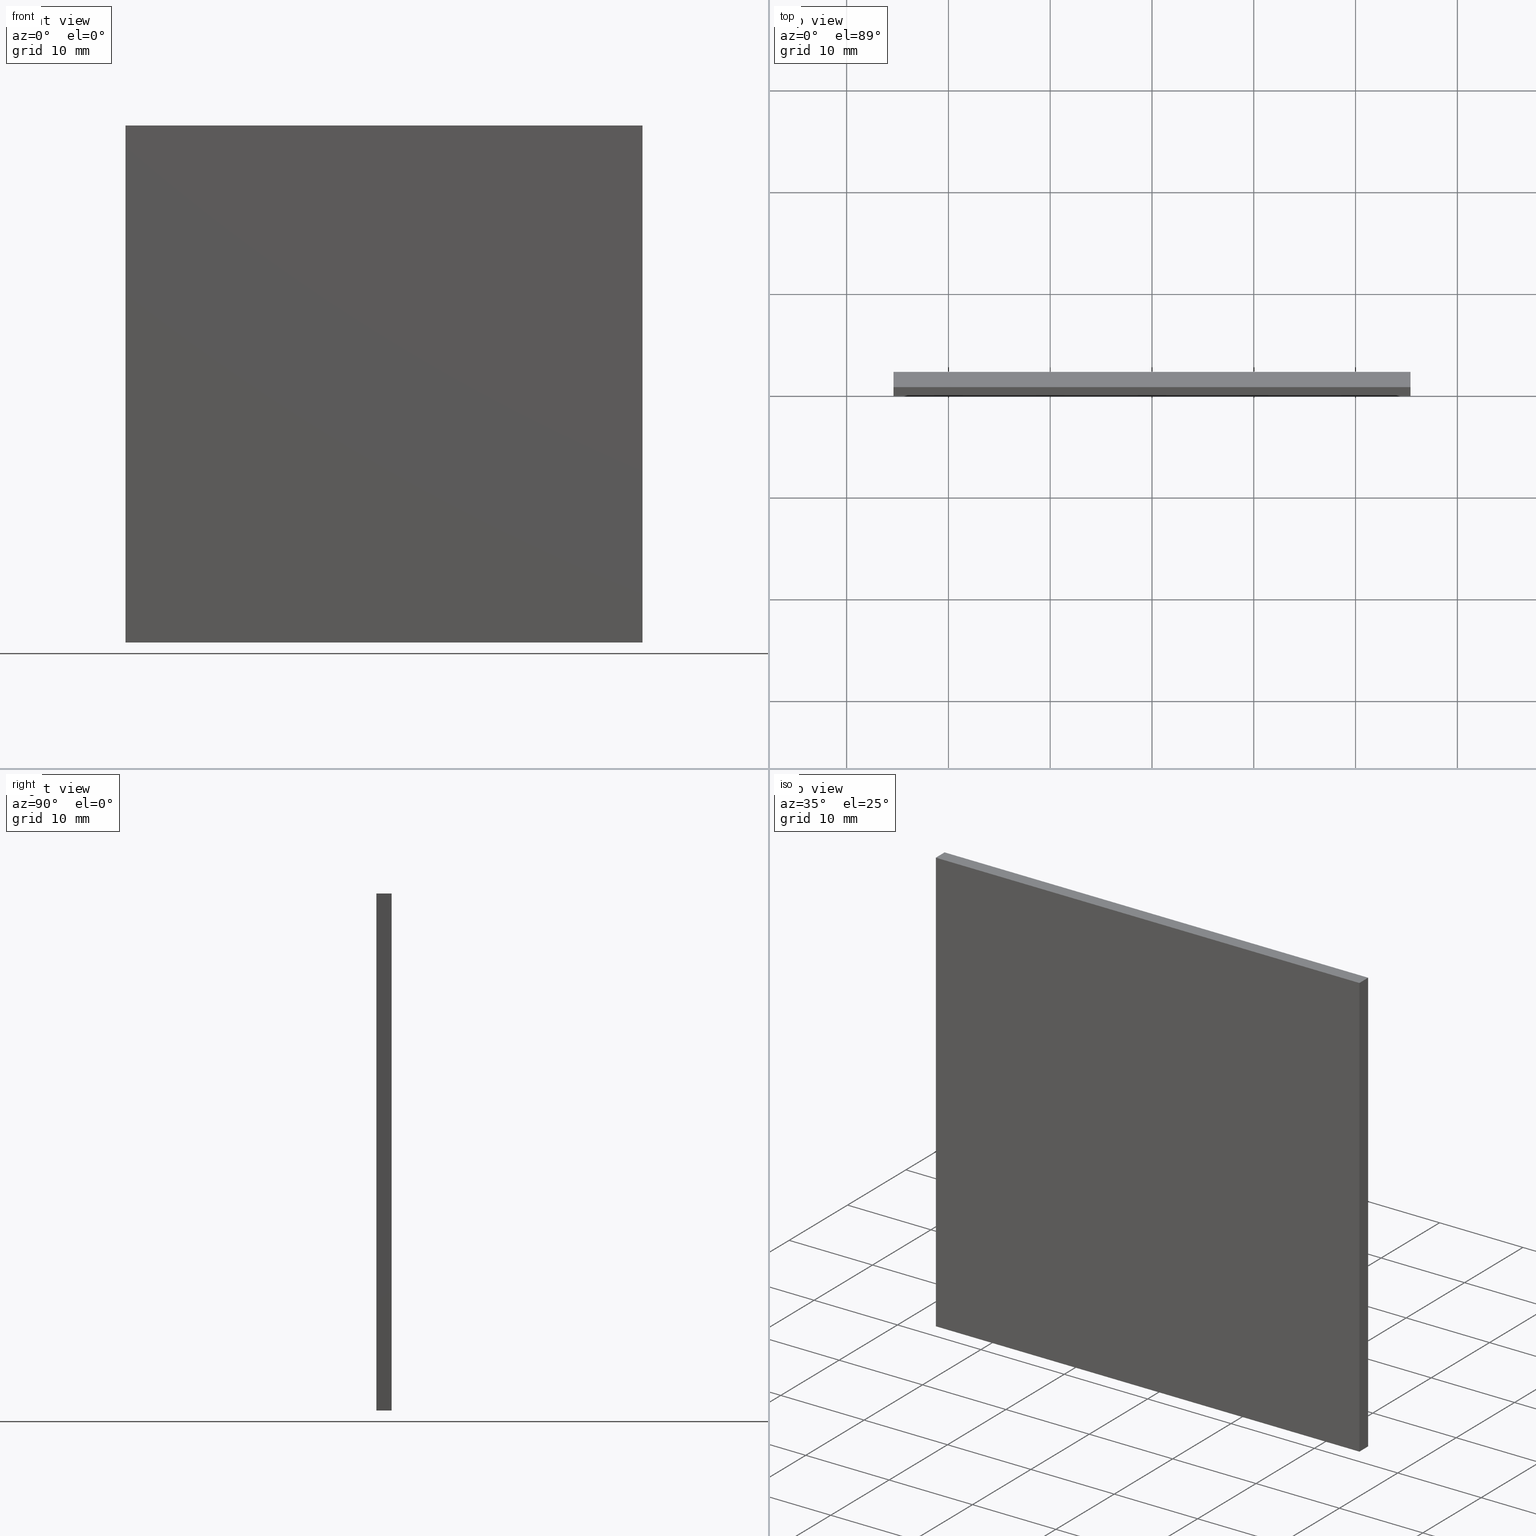
[diagram: canonical four-view strip — front | top / right | iso, engineering-drawing reading convention]
A machine part, canonical four-view strip (front | top / right | iso — engineering-drawing reading convention). The complete STEP part file that produces these views, byte-faithful:
ISO-10303-21;
HEADER;
FILE_DESCRIPTION (( 'STEP AP214' ),
    '1' );
FILE_NAME ('350505.STEP',
    '2019-08-14T06:09:32',
    ( 'user' ),
    ( '΢���й�' ),
    'SwSTEP 2.0',
    'SolidWorks 2016',
    '' );
FILE_SCHEMA (( 'AUTOMOTIVE_DESIGN' ));
ENDSEC;

DATA;
#1 = FACE_OUTER_BOUND ( 'NONE', #18, .T. ) ;
#2 = VECTOR ( 'NONE', #26, 1000.000000000000000 ) ;
#3 = VERTEX_POINT ( 'NONE', #104 ) ;
#4 = STYLED_ITEM ( 'NONE', ( #117 ), #57 ) ;
#5 = CARTESIAN_POINT ( 'NONE',  ( -25.40000000000000200, 0.0000000000000000000, 25.39999999999999900 ) ) ;
#6 = DIRECTION ( 'NONE',  ( 0.0000000000000000000, 0.0000000000000000000, 1.000000000000000000 ) ) ;
#7 = DIRECTION ( 'NONE',  ( 1.000000000000000000, 0.0000000000000000000, 0.0000000000000000000 ) ) ;
#8 = CARTESIAN_POINT ( 'NONE',  ( -25.40000000000000200, 1.500000000000000000, 25.39999999999999900 ) ) ;
#9 = ORIENTED_EDGE ( 'NONE', *, *, #189, .F. ) ;
#10 = STYLED_ITEM ( 'NONE', ( #97 ), #148 ) ;
#11 = DIRECTION ( 'NONE',  ( 0.0000000000000000000, -0.0000000000000000000, -1.000000000000000000 ) ) ;
#12 =( LENGTH_UNIT ( ) NAMED_UNIT ( * ) SI_UNIT ( .MILLI., .METRE. ) );
#13 = CARTESIAN_POINT ( 'NONE',  ( 25.39999999999999500, 1.500000000000000000, 25.39999999999999900 ) ) ;
#14 = FACE_OUTER_BOUND ( 'NONE', #115, .T. ) ;
#15 = SURFACE_STYLE_USAGE ( .BOTH. , #123 ) ;
#16 = VERTEX_POINT ( 'NONE', #105 ) ;
#17 = PRESENTATION_LAYER_ASSIGNMENT (  '', '', ( #4 ) ) ;
#18 = EDGE_LOOP ( 'NONE', ( #65, #136, #185, #23 ) ) ;
#19 = EDGE_CURVE ( 'NONE', #174, #90, #46, .T. ) ;
#20 = ORIENTED_EDGE ( 'NONE', *, *, #143, .F. ) ;
#21 = FACE_OUTER_BOUND ( 'NONE', #163, .T. ) ;
#22 = PRESENTATION_LAYER_ASSIGNMENT (  '', '', ( #10 ) ) ;
#23 = ORIENTED_EDGE ( 'NONE', *, *, #173, .T. ) ;
#24 = DIRECTION ( 'NONE',  ( -1.000000000000000000, -0.0000000000000000000, -0.0000000000000000000 ) ) ;
#25 = CARTESIAN_POINT ( 'NONE',  ( 25.39999999999999500, 1.500000000000000000, -25.39999999999999900 ) ) ;
#26 = DIRECTION ( 'NONE',  ( -0.0000000000000000000, -1.000000000000000000, -0.0000000000000000000 ) ) ;
#27 = DIRECTION ( 'NONE',  ( 0.0000000000000000000, -1.000000000000000000, 0.0000000000000000000 ) ) ;
#28 = FACE_OUTER_BOUND ( 'NONE', #161, .T. ) ;
#29 = SURFACE_STYLE_FILL_AREA ( #62 ) ;
#30 = DIRECTION ( 'NONE',  ( -0.0000000000000000000, -0.0000000000000000000, 1.000000000000000000 ) ) ;
#31 = MECHANICAL_DESIGN_GEOMETRIC_PRESENTATION_REPRESENTATION (  '', ( #4 ), #42 ) ;
#32 = PLANE ( 'NONE',  #68 ) ;
#33 = EDGE_CURVE ( 'NONE', #174, #147, #202, .T. ) ;
#34 = VECTOR ( 'NONE', #159, 1000.000000000000000 ) ;
#35 = MECHANICAL_DESIGN_GEOMETRIC_PRESENTATION_REPRESENTATION (  '', ( #10 ), #47 ) ;
#36 = SURFACE_STYLE_FILL_AREA ( #140 ) ;
#37 = EDGE_LOOP ( 'NONE', ( #176, #190, #9, #53 ) ) ;
#38 = PRODUCT_DEFINITION_CONTEXT ( 'detailed design', #194, 'design' ) ;
#39 = VECTOR ( 'NONE', #158, 1000.000000000000000 ) ;
#40 = ORIENTED_EDGE ( 'NONE', *, *, #120, .F. ) ;
#41 =( NAMED_UNIT ( * ) SI_UNIT ( $, .STERADIAN. ) SOLID_ANGLE_UNIT ( ) );
#42 =( GEOMETRIC_REPRESENTATION_CONTEXT ( 3 ) GLOBAL_UNCERTAINTY_ASSIGNED_CONTEXT ( ( #201 ) ) GLOBAL_UNIT_ASSIGNED_CONTEXT ( ( #91, #58, #121 ) ) REPRESENTATION_CONTEXT ( 'NONE', 'WORKASPACE' ) );
#43 = CARTESIAN_POINT ( 'NONE',  ( -25.40000000000000200, 1.500000000000000000, 25.39999999999999900 ) ) ;
#44 = CARTESIAN_POINT ( 'NONE',  ( -25.40000000000000200, 1.500000000000000000, -25.39999999999999900 ) ) ;
#45 = EDGE_CURVE ( 'NONE', #3, #16, #78, .T. ) ;
#46 = LINE ( 'NONE', #59, #122 ) ;
#47 =( GEOMETRIC_REPRESENTATION_CONTEXT ( 3 ) GLOBAL_UNCERTAINTY_ASSIGNED_CONTEXT ( ( #130 ) ) GLOBAL_UNIT_ASSIGNED_CONTEXT ( ( #12, #172, #118 ) ) REPRESENTATION_CONTEXT ( 'NONE', 'WORKASPACE' ) );
#48 = PRODUCT_CONTEXT ( 'NONE', #86, 'mechanical' ) ;
#49 = CARTESIAN_POINT ( 'NONE',  ( 25.39999999999999500, 1.500000000000000000, -25.39999999999999900 ) ) ;
#50 = ORIENTED_EDGE ( 'NONE', *, *, #85, .F. ) ;
#51 = FACE_OUTER_BOUND ( 'NONE', #125, .T. ) ;
#52 = EDGE_CURVE ( 'NONE', #147, #131, #198, .T. ) ;
#53 = ORIENTED_EDGE ( 'NONE', *, *, #45, .T. ) ;
#54 = DIRECTION ( 'NONE',  ( 1.000000000000000000, -0.0000000000000000000, 0.0000000000000000000 ) ) ;
#55 = ORIENTED_EDGE ( 'NONE', *, *, #189, .T. ) ;
#56 = DIRECTION ( 'NONE',  ( 0.0000000000000000000, -1.000000000000000000, 0.0000000000000000000 ) ) ;
#57 = MANIFOLD_SOLID_BREP ( '͹̨-����1', #191 ) ;
#58 =( NAMED_UNIT ( * ) PLANE_ANGLE_UNIT ( ) SI_UNIT ( $, .RADIAN. ) );
#59 = CARTESIAN_POINT ( 'NONE',  ( -25.40000000000000200, 1.500000000000000000, 25.39999999999999900 ) ) ;
#60 = VERTEX_POINT ( 'NONE', #199 ) ;
#61 = DIRECTION ( 'NONE',  ( -0.0000000000000000000, -1.000000000000000000, -0.0000000000000000000 ) ) ;
#62 = FILL_AREA_STYLE ('',( #74 ) ) ;
#63 = ORIENTED_EDGE ( 'NONE', *, *, #52, .F. ) ;
#64 = LINE ( 'NONE', #155, #72 ) ;
#65 = ORIENTED_EDGE ( 'NONE', *, *, #85, .T. ) ;
#66 = ADVANCED_FACE ( 'NONE', ( #1 ), #32, .F. ) ;
#67 = ORIENTED_EDGE ( 'NONE', *, *, #142, .F. ) ;
#68 = AXIS2_PLACEMENT_3D ( 'NONE', #44, #77, #187 ) ;
#69 = CARTESIAN_POINT ( 'NONE',  ( -25.40000000000000200, 1.500000000000000000, 25.39999999999999900 ) ) ;
#70 = DIRECTION ( 'NONE',  ( 0.0000000000000000000, 0.0000000000000000000, -1.000000000000000000 ) ) ;
#71 = UNCERTAINTY_MEASURE_WITH_UNIT (LENGTH_MEASURE( 1.000000000000000100E-005 ), #114, 'distance_accuracy_value', 'NONE');
#72 = VECTOR ( 'NONE', #61, 1000.000000000000000 ) ;
#73 = AXIS2_PLACEMENT_3D ( 'NONE', #183, #6, #119 ) ;
#74 = FILL_AREA_STYLE_COLOUR ( '', #152 ) ;
#75 = VECTOR ( 'NONE', #70, 1000.000000000000000 ) ;
#76 = ORIENTED_EDGE ( 'NONE', *, *, #142, .T. ) ;
#77 = DIRECTION ( 'NONE',  ( 0.0000000000000000000, 0.0000000000000000000, 1.000000000000000000 ) ) ;
#78 = LINE ( 'NONE', #179, #160 ) ;
#79 = ORIENTED_EDGE ( 'NONE', *, *, #52, .T. ) ;
#80 = VECTOR ( 'NONE', #30, 1000.000000000000000 ) ;
#81 = ORIENTED_EDGE ( 'NONE', *, *, #120, .T. ) ;
#82 = PRODUCT_DEFINITION ( 'δ֪', '', #100, #38 ) ;
#83 = LINE ( 'NONE', #164, #34 ) ;
#84 = PLANE ( 'NONE',  #116 ) ;
#85 = EDGE_CURVE ( 'NONE', #102, #16, #178, .T. ) ;
#86 = APPLICATION_CONTEXT ( 'automotive_design' ) ;
#87 = DIRECTION ( 'NONE',  ( 0.0000000000000000000, 0.0000000000000000000, -1.000000000000000000 ) ) ;
#88 = ORIENTED_EDGE ( 'NONE', *, *, #33, .T. ) ;
#89 = CARTESIAN_POINT ( 'NONE',  ( 0.0000000000000000000, 1.500000000000000000, 0.0000000000000000000 ) ) ;
#90 = VERTEX_POINT ( 'NONE', #170 ) ;
#91 =( LENGTH_UNIT ( ) NAMED_UNIT ( * ) SI_UNIT ( .MILLI., .METRE. ) );
#92 = LINE ( 'NONE', #196, #132 ) ;
#93 = DIRECTION ( 'NONE',  ( -1.000000000000000000, -0.0000000000000000000, -0.0000000000000000000 ) ) ;
#94 = AXIS2_PLACEMENT_3D ( 'NONE', #43, #54, #150 ) ;
#95 = DIRECTION ( 'NONE',  ( -0.0000000000000000000, -1.000000000000000000, -0.0000000000000000000 ) ) ;
#96 =( NAMED_UNIT ( * ) PLANE_ANGLE_UNIT ( ) SI_UNIT ( $, .RADIAN. ) );
#97 = PRESENTATION_STYLE_ASSIGNMENT (( #154 ) ) ;
#98 = ORIENTED_EDGE ( 'NONE', *, *, #101, .F. ) ;
#99 = FACE_OUTER_BOUND ( 'NONE', #37, .T. ) ;
#100 = PRODUCT_DEFINITION_FORMATION_WITH_SPECIFIED_SOURCE ( '�κ�', '', #109, .NOT_KNOWN. ) ;
#101 = EDGE_CURVE ( 'NONE', #16, #90, #83, .T. ) ;
#102 = VERTEX_POINT ( 'NONE', #124 ) ;
#103 = VECTOR ( 'NONE', #93, 1000.000000000000000 ) ;
#104 = CARTESIAN_POINT ( 'NONE',  ( -25.40000000000000200, 1.500000000000000000, -25.39999999999999900 ) ) ;
#105 = CARTESIAN_POINT ( 'NONE',  ( -25.40000000000000200, 0.0000000000000000000, -25.39999999999999900 ) ) ;
#106 = PLANE ( 'NONE',  #134 ) ;
#107 = ORIENTED_EDGE ( 'NONE', *, *, #19, .T. ) ;
#108 = CARTESIAN_POINT ( 'NONE',  ( 25.39999999999999500, 1.500000000000000000, 25.39999999999999900 ) ) ;
#109 = PRODUCT ( '350505', '350505', '', ( #48 ) ) ;
#110 = PLANE ( 'NONE',  #156 ) ;
#111 = PRODUCT_RELATED_PRODUCT_CATEGORY ( 'part', '', ( #109 ) ) ;
#112 = CARTESIAN_POINT ( 'NONE',  ( -25.40000000000000200, 1.500000000000000000, 25.39999999999999900 ) ) ;
#113 = DIRECTION ( 'NONE',  ( -0.0000000000000000000, -1.000000000000000000, -0.0000000000000000000 ) ) ;
#114 =( LENGTH_UNIT ( ) NAMED_UNIT ( * ) SI_UNIT ( .MILLI., .METRE. ) );
#115 = EDGE_LOOP ( 'NONE', ( #67, #40, #98, #50 ) ) ;
#116 = AXIS2_PLACEMENT_3D ( 'NONE', #69, #180, #171 ) ;
#117 = PRESENTATION_STYLE_ASSIGNMENT (( #15 ) ) ;
#118 =( NAMED_UNIT ( * ) SI_UNIT ( $, .STERADIAN. ) SOLID_ANGLE_UNIT ( ) );
#119 = DIRECTION ( 'NONE',  ( 1.000000000000000000, 0.0000000000000000000, 0.0000000000000000000 ) ) ;
#120 = EDGE_CURVE ( 'NONE', #90, #60, #126, .T. ) ;
#121 =( NAMED_UNIT ( * ) SI_UNIT ( $, .STERADIAN. ) SOLID_ANGLE_UNIT ( ) );
#122 = VECTOR ( 'NONE', #95, 1000.000000000000000 ) ;
#123 = SURFACE_SIDE_STYLE ('',( #36 ) ) ;
#124 = CARTESIAN_POINT ( 'NONE',  ( 25.39999999999999500, 0.0000000000000000000, -25.39999999999999900 ) ) ;
#125 = EDGE_LOOP ( 'NONE', ( #76, #144, #63, #166 ) ) ;
#126 = LINE ( 'NONE', #5, #149 ) ;
#127 = LINE ( 'NONE', #25, #2 ) ;
#128 = EDGE_CURVE ( 'NONE', #131, #3, #168, .T. ) ;
#129 = ADVANCED_FACE ( 'NONE', ( #99 ), #135, .F. ) ;
#130 = UNCERTAINTY_MEASURE_WITH_UNIT (LENGTH_MEASURE( 1.000000000000000100E-005 ), #12, 'distance_accuracy_value', 'NONE');
#131 = VERTEX_POINT ( 'NONE', #49 ) ;
#132 = VECTOR ( 'NONE', #87, 1000.000000000000000 ) ;
#133 = CARTESIAN_POINT ( 'NONE',  ( -25.40000000000000200, 1.500000000000000000, 25.39999999999999900 ) ) ;
#134 = AXIS2_PLACEMENT_3D ( 'NONE', #151, #56, #137 ) ;
#135 = PLANE ( 'NONE',  #94 ) ;
#136 = ORIENTED_EDGE ( 'NONE', *, *, #45, .F. ) ;
#137 = DIRECTION ( 'NONE',  ( 0.0000000000000000000, -0.0000000000000000000, -1.000000000000000000 ) ) ;
#138 = CARTESIAN_POINT ( 'NONE',  ( 25.39999999999999500, 1.500000000000000000, 25.39999999999999900 ) ) ;
#139 = APPLICATION_PROTOCOL_DEFINITION ( 'draft international standard', 'automotive_design', 1998, #86 ) ;
#140 = FILL_AREA_STYLE ('',( #157 ) ) ;
#141 = ADVANCED_FACE ( 'NONE', ( #21 ), #84, .F. ) ;
#142 = EDGE_CURVE ( 'NONE', #60, #102, #92, .T. ) ;
#143 = EDGE_CURVE ( 'NONE', #147, #60, #64, .T. ) ;
#144 = ORIENTED_EDGE ( 'NONE', *, *, #173, .F. ) ;
#145 = VECTOR ( 'NONE', #24, 1000.000000000000000 ) ;
#146 = LINE ( 'NONE', #112, #80 ) ;
#147 = VERTEX_POINT ( 'NONE', #108 ) ;
#148 = ADVANCED_BREP_SHAPE_REPRESENTATION ( '350505', ( #57, #73 ), #182 ) ;
#149 = VECTOR ( 'NONE', #7, 1000.000000000000000 ) ;
#150 = DIRECTION ( 'NONE',  ( 0.0000000000000000000, 0.0000000000000000000, -1.000000000000000000 ) ) ;
#151 = CARTESIAN_POINT ( 'NONE',  ( 0.0000000000000000000, 0.0000000000000000000, 0.0000000000000000000 ) ) ;
#152 = COLOUR_RGB ( '',1.000000000000000000, 1.000000000000000000, 1.000000000000000000 ) ;
#153 = PLANE ( 'NONE',  #193 ) ;
#154 = SURFACE_STYLE_USAGE ( .BOTH. , #169 ) ;
#155 = CARTESIAN_POINT ( 'NONE',  ( 25.39999999999999500, 1.500000000000000000, 25.39999999999999900 ) ) ;
#156 = AXIS2_PLACEMENT_3D ( 'NONE', #89, #27, #11 ) ;
#157 = FILL_AREA_STYLE_COLOUR ( '', #162 ) ;
#158 = DIRECTION ( 'NONE',  ( 1.000000000000000000, 0.0000000000000000000, 0.0000000000000000000 ) ) ;
#159 = DIRECTION ( 'NONE',  ( -0.0000000000000000000, -0.0000000000000000000, 1.000000000000000000 ) ) ;
#160 = VECTOR ( 'NONE', #113, 1000.000000000000000 ) ;
#161 = EDGE_LOOP ( 'NONE', ( #79, #181, #55, #88 ) ) ;
#162 = COLOUR_RGB ( '',1.000000000000000000, 1.000000000000000000, 1.000000000000000000 ) ;
#163 = EDGE_LOOP ( 'NONE', ( #81, #20, #175, #107 ) ) ;
#164 = CARTESIAN_POINT ( 'NONE',  ( -25.40000000000000200, 0.0000000000000000000, 25.39999999999999900 ) ) ;
#165 = CARTESIAN_POINT ( 'NONE',  ( -25.40000000000000200, 1.500000000000000000, -25.39999999999999900 ) ) ;
#166 = ORIENTED_EDGE ( 'NONE', *, *, #143, .T. ) ;
#167 = DIRECTION ( 'NONE',  ( 0.0000000000000000000, 0.0000000000000000000, 1.000000000000000000 ) ) ;
#168 = LINE ( 'NONE', #165, #145 ) ;
#169 = SURFACE_SIDE_STYLE ('',( #29 ) ) ;
#170 = CARTESIAN_POINT ( 'NONE',  ( -25.40000000000000200, 0.0000000000000000000, 25.39999999999999900 ) ) ;
#171 = DIRECTION ( 'NONE',  ( -1.000000000000000000, 0.0000000000000000000, -0.0000000000000000000 ) ) ;
#172 =( NAMED_UNIT ( * ) PLANE_ANGLE_UNIT ( ) SI_UNIT ( $, .RADIAN. ) );
#173 = EDGE_CURVE ( 'NONE', #131, #102, #127, .T. ) ;
#174 = VERTEX_POINT ( 'NONE', #8 ) ;
#175 = ORIENTED_EDGE ( 'NONE', *, *, #33, .F. ) ;
#176 = ORIENTED_EDGE ( 'NONE', *, *, #101, .T. ) ;
#177 = ADVANCED_FACE ( 'NONE', ( #14 ), #106, .T. ) ;
#178 = LINE ( 'NONE', #195, #103 ) ;
#179 = CARTESIAN_POINT ( 'NONE',  ( -25.40000000000000200, 1.500000000000000000, -25.39999999999999900 ) ) ;
#180 = DIRECTION ( 'NONE',  ( 0.0000000000000000000, 0.0000000000000000000, -1.000000000000000000 ) ) ;
#181 = ORIENTED_EDGE ( 'NONE', *, *, #128, .T. ) ;
#182 =( GEOMETRIC_REPRESENTATION_CONTEXT ( 3 ) GLOBAL_UNCERTAINTY_ASSIGNED_CONTEXT ( ( #71 ) ) GLOBAL_UNIT_ASSIGNED_CONTEXT ( ( #114, #96, #41 ) ) REPRESENTATION_CONTEXT ( 'NONE', 'WORKASPACE' ) );
#183 = CARTESIAN_POINT ( 'NONE',  ( 0.0000000000000000000, 0.0000000000000000000, 0.0000000000000000000 ) ) ;
#184 = ADVANCED_FACE ( 'NONE', ( #28 ), #110, .F. ) ;
#185 = ORIENTED_EDGE ( 'NONE', *, *, #128, .F. ) ;
#186 = SHAPE_DEFINITION_REPRESENTATION ( #192, #148 ) ;
#187 = DIRECTION ( 'NONE',  ( 1.000000000000000000, 0.0000000000000000000, -0.0000000000000000000 ) ) ;
#188 = ADVANCED_FACE ( 'NONE', ( #51 ), #153, .F. ) ;
#189 = EDGE_CURVE ( 'NONE', #3, #174, #146, .T. ) ;
#190 = ORIENTED_EDGE ( 'NONE', *, *, #19, .F. ) ;
#191 = CLOSED_SHELL ( 'NONE', ( #188, #66, #129, #141, #184, #177 ) ) ;
#192 = PRODUCT_DEFINITION_SHAPE ( 'NONE', 'NONE',  #82 ) ;
#193 = AXIS2_PLACEMENT_3D ( 'NONE', #138, #197, #167 ) ;
#194 = APPLICATION_CONTEXT ( 'automotive_design' ) ;
#195 = CARTESIAN_POINT ( 'NONE',  ( -25.40000000000000200, 0.0000000000000000000, -25.39999999999999900 ) ) ;
#196 = CARTESIAN_POINT ( 'NONE',  ( 25.39999999999999500, 0.0000000000000000000, 25.39999999999999900 ) ) ;
#197 = DIRECTION ( 'NONE',  ( -1.000000000000000000, 0.0000000000000000000, 0.0000000000000000000 ) ) ;
#198 = LINE ( 'NONE', #13, #75 ) ;
#199 = CARTESIAN_POINT ( 'NONE',  ( 25.39999999999999500, 0.0000000000000000000, 25.39999999999999900 ) ) ;
#200 = APPLICATION_PROTOCOL_DEFINITION ( 'draft international standard', 'automotive_design', 1998, #194 ) ;
#201 = UNCERTAINTY_MEASURE_WITH_UNIT (LENGTH_MEASURE( 1.000000000000000100E-005 ), #91, 'distance_accuracy_value', 'NONE');
#202 = LINE ( 'NONE', #133, #39 ) ;
ENDSEC;
END-ISO-10303-21;
